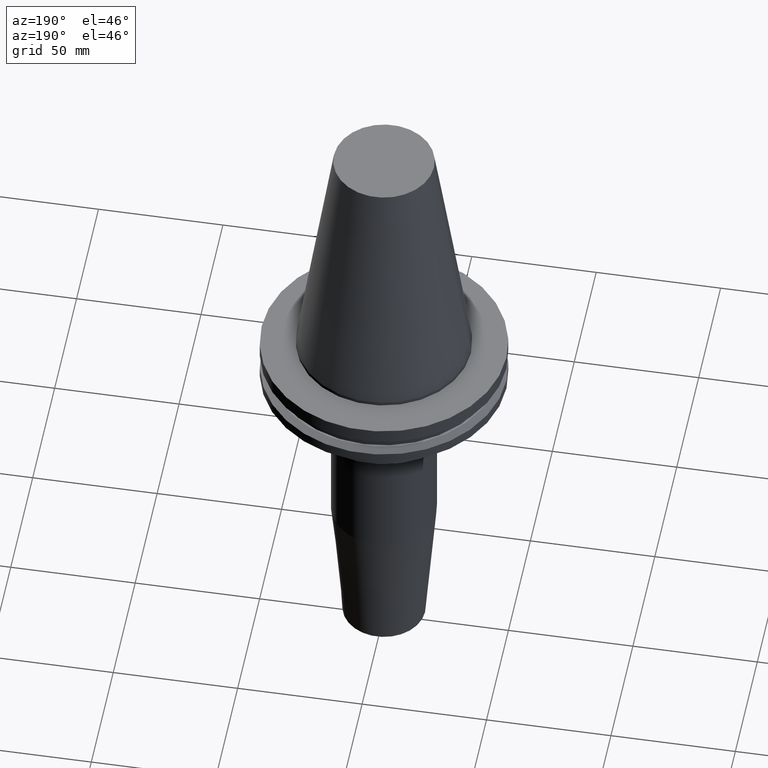
[diagram: clean part render]
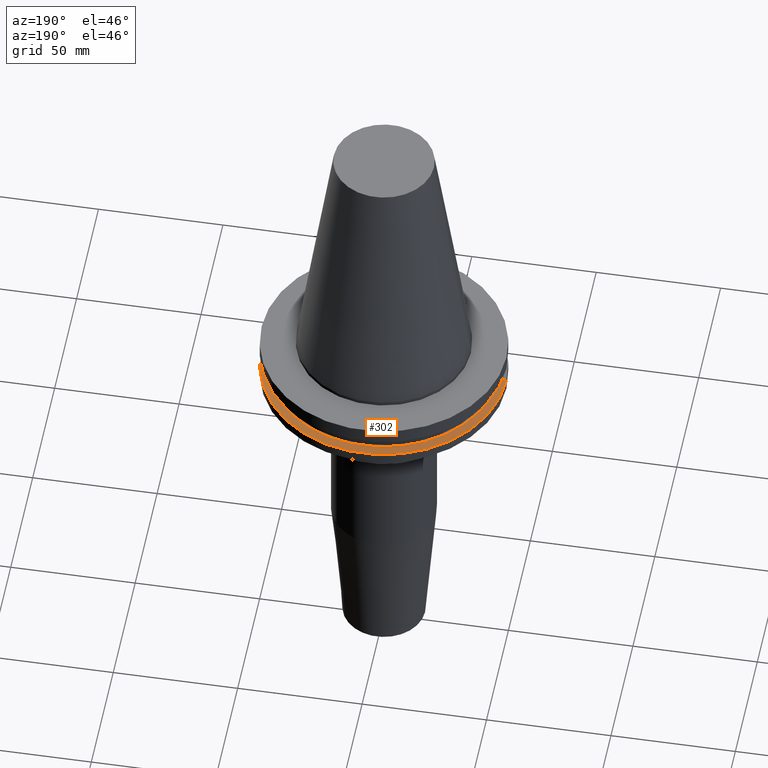
[diagram: same view with one face highlighted and labeled with its STEP entity id]
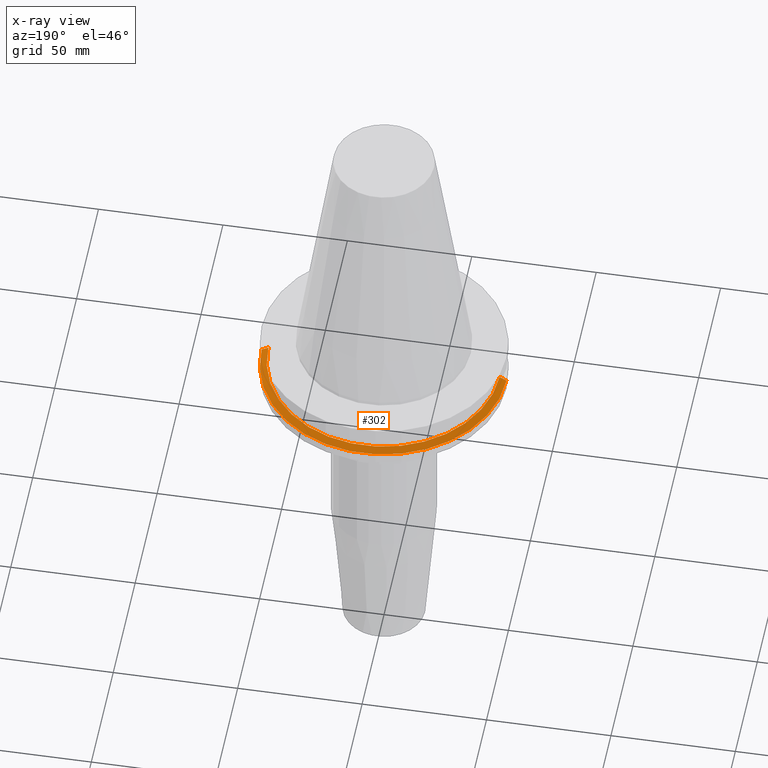
[diagram: x-ray of the same camera — body ghosted, the highlighted face saturated]
A machine part, auxiliary view. The second image highlights one B-rep face of the part: STEP entity #302.
The next image is the same camera in x-ray: the body ghosted, the highlighted face saturated — about 0% of this face is hidden behind the body in this view.
In plain terms, the highlighted conical surface has half-angle 60 deg.
Its self-contained STEP definition (entity closure, byte-faithful):
#28 = ORIENTED_EDGE ( 'NONE', *, *, #148, .F. ) ;
#39 = CARTESIAN_POINT ( 'NONE',  ( 49.21499999999998920, 0.000000000000000000, -14.65761014474876944 ) ) ;
#51 = CIRCLE ( 'NONE', #62, 46.43919780457007818 ) ;
#53 = CIRCLE ( 'NONE', #358, 49.21499999999998920 ) ;
#62 = AXIS2_PLACEMENT_3D ( 'NONE', #812, #299, #412 ) ;
#137 = VECTOR ( 'NONE', #776, 1000.000000000000114 ) ;
#148 = EDGE_CURVE ( 'NONE', #655, #747, #782, .T. ) ;
#151 = CARTESIAN_POINT ( 'NONE',  ( 46.43919780457007818, 5.857130358318725715E-15, -13.05499999999999794 ) ) ;
#221 = EDGE_LOOP ( 'NONE', ( #618, #390, #396, #28 ) ) ;
#255 = LINE ( 'NONE', #320, #137 ) ;
#261 = CARTESIAN_POINT ( 'NONE',  ( -49.21499999999998920, 0.000000000000000000, -14.65761014474876944 ) ) ;
#274 = CONICAL_SURFACE ( 'NONE', #381, 49.21499999999998920, 1.047197551196554333 ) ;
#299 = DIRECTION ( 'NONE',  ( -0.000000000000000000, -0.000000000000000000, 1.000000000000000000 ) ) ;
#302 = ADVANCED_FACE ( 'NONE', ( #401 ), #274, .T. ) ;
#309 = CARTESIAN_POINT ( 'NONE',  ( -49.21499999999998920, 6.027099222003697037E-15, -14.65761014474876944 ) ) ;
#320 = CARTESIAN_POINT ( 'NONE',  ( 49.21499999999998920, 6.027099222003697037E-15, -14.65761014474876944 ) ) ;
#331 = CARTESIAN_POINT ( 'NONE',  ( 0.000000000000000000, 0.000000000000000000, -14.65761014474876944 ) ) ;
#336 = VERTEX_POINT ( 'NONE', #151 ) ;
#358 = AXIS2_PLACEMENT_3D ( 'NONE', #471, #395, #537 ) ;
#381 = AXIS2_PLACEMENT_3D ( 'NONE', #331, #851, #467 ) ;
#390 = ORIENTED_EDGE ( 'NONE', *, *, #530, .T. ) ;
#395 = DIRECTION ( 'NONE',  ( -0.000000000000000000, -0.000000000000000000, 1.000000000000000000 ) ) ;
#396 = ORIENTED_EDGE ( 'NONE', *, *, #598, .T. ) ;
#401 = FACE_OUTER_BOUND ( 'NONE', #221, .T. ) ;
#412 = DIRECTION ( 'NONE',  ( 1.000000000000000000, 0.000000000000000000, 0.000000000000000000 ) ) ;
#467 = DIRECTION ( 'NONE',  ( -1.000000000000000000, 0.000000000000000000, 0.000000000000000000 ) ) ;
#468 = CARTESIAN_POINT ( 'NONE',  ( -46.43919780457007818, 0.000000000000000000, -13.05499999999999794 ) ) ;
#471 = CARTESIAN_POINT ( 'NONE',  ( 0.000000000000000000, 0.000000000000000000, -14.65761014474876944 ) ) ;
#521 = VECTOR ( 'NONE', #773, 1000.000000000000114 ) ;
#530 = EDGE_CURVE ( 'NONE', #336, #799, #255, .T. ) ;
#537 = DIRECTION ( 'NONE',  ( 1.000000000000000000, 0.000000000000000000, 0.000000000000000000 ) ) ;
#598 = EDGE_CURVE ( 'NONE', #799, #747, #53, .T. ) ;
#618 = ORIENTED_EDGE ( 'NONE', *, *, #762, .F. ) ;
#655 = VERTEX_POINT ( 'NONE', #468 ) ;
#747 = VERTEX_POINT ( 'NONE', #309 ) ;
#762 = EDGE_CURVE ( 'NONE', #336, #655, #51, .T. ) ;
#773 = DIRECTION ( 'NONE',  ( -0.8660254037844169472, 0.000000000000000000, -0.5000000000000375255 ) ) ;
#776 = DIRECTION ( 'NONE',  ( 0.8660254037844169472, 1.060575238724880168E-16, -0.5000000000000375255 ) ) ;
#782 = LINE ( 'NONE', #261, #521 ) ;
#799 = VERTEX_POINT ( 'NONE', #39 ) ;
#812 = CARTESIAN_POINT ( 'NONE',  ( 0.000000000000000000, 0.000000000000000000, -13.05499999999999794 ) ) ;
#851 = DIRECTION ( 'NONE',  ( 0.000000000000000000, 0.000000000000000000, -1.000000000000000000 ) ) ;